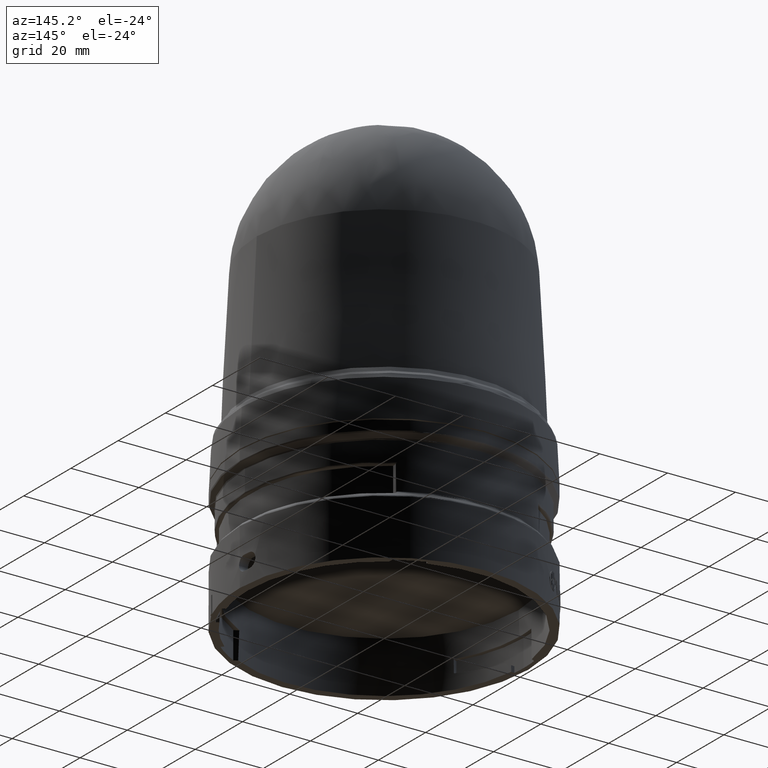
[diagram: clean part render]
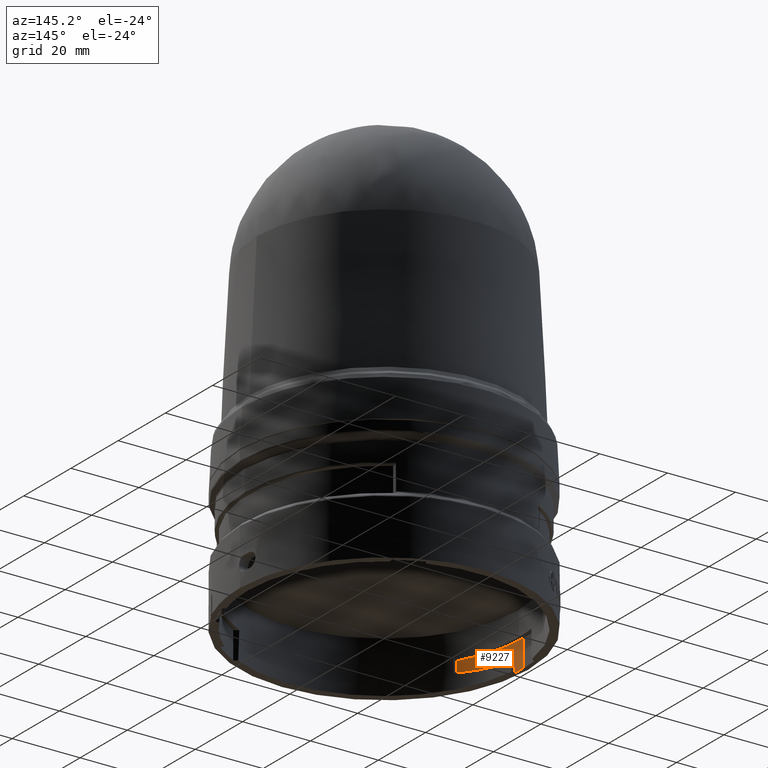
[diagram: same view with one face highlighted and labeled with its STEP entity id]
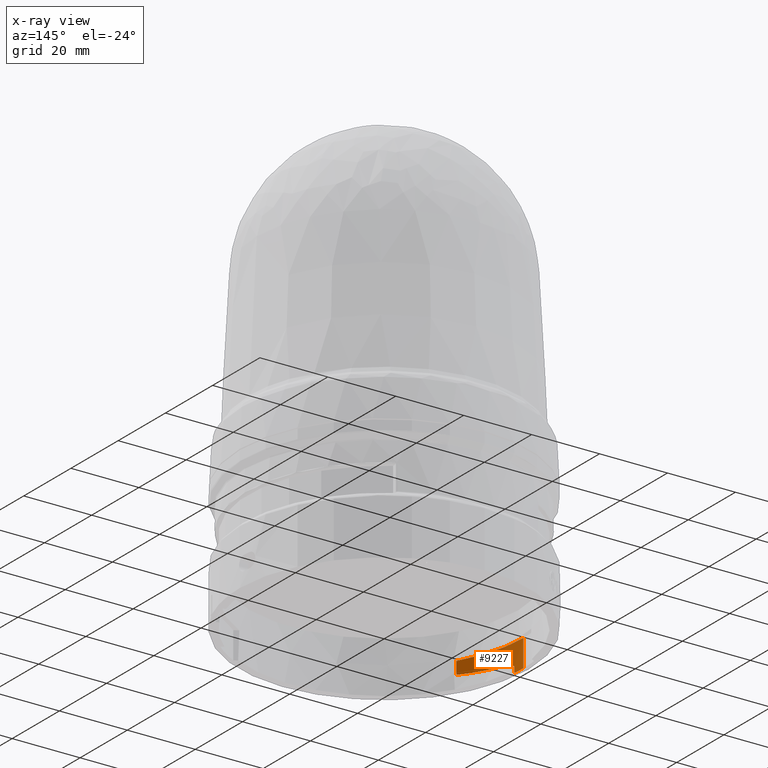
[diagram: x-ray of the same camera — body ghosted, the highlighted face saturated]
A machine part, auxiliary view. The second image highlights one B-rep face of the part: STEP entity #9227.
The next image is the same camera in x-ray: the body ghosted, the highlighted face saturated — about 0% of this face is hidden behind the body in this view.
In plain terms, the highlighted cylindrical surface (partial cylindrical patch) has radius 41 mm, axis along (0, 0, -1).
Its self-contained STEP definition (entity closure, byte-faithful):
#202 = ORIENTED_EDGE ( 'NONE', *, *, #3271, .F. ) ;
#547 = CARTESIAN_POINT ( 'NONE',  ( -1.570605161167718533, -0.4273900073737654237, 0.1327989843107011403 ) ) ;
#566 = VERTEX_POINT ( 'NONE', #1393 ) ;
#697 = CARTESIAN_POINT ( 'NONE',  ( -1.397915021856770634, -0.8070866141732285781, 0.1692913385826773642 ) ) ;
#1165 = CARTESIAN_POINT ( 'NONE',  ( -1.397915021856770634, -0.8070866141732291332, 0.3149606299212602822 ) ) ;
#1393 = CARTESIAN_POINT ( 'NONE',  ( -1.608030811880376998, -0.1406844666399193755, 0.06916624872319923623 ) ) ;
#1469 = CIRCLE ( 'NONE', #13457, 1.614173228346456712 ) ;
#1570 = CARTESIAN_POINT ( 'NONE',  ( 0.0000000000000000000, 0.0000000000000000000, 2.731847993664263218E-16 ) ) ;
#1690 = ORIENTED_EDGE ( 'NONE', *, *, #4245, .F. ) ;
#1779 = CARTESIAN_POINT ( 'NONE',  ( -1.605717400007532047, -0.1671268853443660940, 0.08449731732468093726 ) ) ;
#2485 = LINE ( 'NONE', #1165, #12586 ) ;
#2946 = ORIENTED_EDGE ( 'NONE', *, *, #4628, .F. ) ;
#3271 = EDGE_CURVE ( 'NONE', #566, #9690, #5677, .T. ) ;
#3800 = CARTESIAN_POINT ( 'NONE',  ( -1.614173228346456712, 0.0000000000000000000, 2.731847993664263218E-16 ) ) ;
#4047 = LINE ( 'NONE', #8834, #8086 ) ;
#4245 = EDGE_CURVE ( 'NONE', #9690, #12371, #9470, .T. ) ;
#4628 = EDGE_CURVE ( 'NONE', #9752, #566, #4047, .T. ) ;
#5181 = CYLINDRICAL_SURFACE ( 'NONE', #12118, 1.614173228346456712 ) ;
#5612 = ORIENTED_EDGE ( 'NONE', *, *, #6969, .F. ) ;
#5677 =( BOUNDED_CURVE ( )  B_SPLINE_CURVE ( 3, ( #10009, #1779, #6561, #14766 ),
 .UNSPECIFIED., .F., .F. ) 
 B_SPLINE_CURVE_WITH_KNOTS ( ( 4, 4 ),
 ( 1.521521338138088542, 1.570848262100884352 ),
 .UNSPECIFIED. ) 
 CURVE ( )  GEOMETRIC_REPRESENTATION_ITEM ( )  RATIONAL_B_SPLINE_CURVE ( ( 1.000000000000000000, 0.9997972481589414429, 0.9997972481589414429, 1.000000000000000000 ) ) 
 REPRESENTATION_ITEM ( '' )  );
#6201 = ORIENTED_EDGE ( 'NONE', *, *, #15354, .F. ) ;
#6393 = DIRECTION ( 'NONE',  ( 0.0000000000000000000, 0.0000000000000000000, -1.000000000000000000 ) ) ;
#6425 = DIRECTION ( 'NONE',  ( 0.0000000000000000000, 0.0000000000000000000, -1.000000000000000000 ) ) ;
#6561 = CARTESIAN_POINT ( 'NONE',  ( -1.602752596233869564, -0.1935042112137255466, 0.09984236824839572144 ) ) ;
#6724 = AXIS2_PLACEMENT_3D ( 'NONE', #7529, #6425, #12292 ) ;
#6969 = EDGE_CURVE ( 'NONE', #12371, #9337, #2485, .T. ) ;
#6979 = CARTESIAN_POINT ( 'NONE',  ( -1.599138203917662482, -0.2198004000938510449, 0.1151920677823656258 ) ) ;
#7273 = DIRECTION ( 'NONE',  ( -0.0000000000000000000, -0.0000000000000000000, 1.000000000000000000 ) ) ;
#7529 = CARTESIAN_POINT ( 'NONE',  ( 0.0000000000000000000, 0.0000000000000000000, 0.3149606299212602822 ) ) ;
#7839 = CARTESIAN_POINT ( 'NONE',  ( -1.397915021856770634, -0.8070866141732293553, 0.3149606299212602822 ) ) ;
#7934 = ORIENTED_EDGE ( 'NONE', *, *, #12610, .F. ) ;
#8086 = VECTOR ( 'NONE', #12424, 39.37007874015748143 ) ;
#8764 = VERTEX_POINT ( 'NONE', #13165 ) ;
#8834 = CARTESIAN_POINT ( 'NONE',  ( -1.608030811880376776, -0.1406844666399194865, 0.3149606299212602822 ) ) ;
#8867 = FACE_OUTER_BOUND ( 'NONE', #13970, .T. ) ;
#8890 = ORIENTED_EDGE ( 'NONE', *, *, #15466, .F. ) ;
#9227 = ADVANCED_FACE ( 'NONE', ( #8867 ), #5181, .F. ) ;
#9337 = VERTEX_POINT ( 'NONE', #7839 ) ;
#9470 =( BOUNDED_CURVE ( )  B_SPLINE_CURVE ( 3, ( #11271, #547, #14928, #697 ),
 .UNSPECIFIED., .F., .F. ) 
 B_SPLINE_CURVE_WITH_KNOTS ( ( 4, 4 ),
 ( 1.288510692878770181, 1.675516081914557809 ),
 .UNSPECIFIED. ) 
 CURVE ( )  GEOMETRIC_REPRESENTATION_ITEM ( )  RATIONAL_B_SPLINE_CURVE ( ( 1.000000000000000000, 0.9875577982796063248, 0.9875577982796063248, 1.000000000000000000 ) ) 
 REPRESENTATION_ITEM ( '' )  );
#9690 = VERTEX_POINT ( 'NONE', #6979 ) ;
#9752 = VERTEX_POINT ( 'NONE', #10791 ) ;
#9794 = DIRECTION ( 'NONE',  ( -0.0000000000000000000, -0.0000000000000000000, 1.000000000000000000 ) ) ;
#9888 = DIRECTION ( 'NONE',  ( -1.000000000000000000, 0.0000000000000000000, 0.0000000000000000000 ) ) ;
#10009 = CARTESIAN_POINT ( 'NONE',  ( -1.608030811880376998, -0.1406844666399193755, 0.06916624872319923623 ) ) ;
#10791 = CARTESIAN_POINT ( 'NONE',  ( -1.608030811880376776, -0.1406844666399193200, 2.731847993664263218E-16 ) ) ;
#10895 = VERTEX_POINT ( 'NONE', #3800 ) ;
#11138 = DIRECTION ( 'NONE',  ( 0.0000000000000000000, 0.0000000000000000000, -1.000000000000000000 ) ) ;
#11271 = CARTESIAN_POINT ( 'NONE',  ( -1.599138203917662482, -0.2198004000938510449, 0.1151920677823656258 ) ) ;
#12118 = AXIS2_PLACEMENT_3D ( 'NONE', #12308, #11138, #9888 ) ;
#12292 = DIRECTION ( 'NONE',  ( -1.000000000000000000, 0.0000000000000000000, 0.0000000000000000000 ) ) ;
#12308 = CARTESIAN_POINT ( 'NONE',  ( 0.0000000000000000000, 0.0000000000000000000, 0.3149606299212602822 ) ) ;
#12332 = LINE ( 'NONE', #14519, #12461 ) ;
#12371 = VERTEX_POINT ( 'NONE', #13393 ) ;
#12424 = DIRECTION ( 'NONE',  ( -0.0000000000000000000, -0.0000000000000000000, 1.000000000000000000 ) ) ;
#12461 = VECTOR ( 'NONE', #6393, 39.37007874015748143 ) ;
#12586 = VECTOR ( 'NONE', #7273, 39.37007874015748143 ) ;
#12610 = EDGE_CURVE ( 'NONE', #8764, #10895, #12332, .T. ) ;
#13165 = CARTESIAN_POINT ( 'NONE',  ( -1.614173228346456712, 0.0000000000000000000, 0.3149606299212602822 ) ) ;
#13393 = CARTESIAN_POINT ( 'NONE',  ( -1.397915021856770634, -0.8070866141732285781, 0.1692913385826773642 ) ) ;
#13457 = AXIS2_PLACEMENT_3D ( 'NONE', #1570, #9794, #13461 ) ;
#13461 = DIRECTION ( 'NONE',  ( -1.000000000000000000, 0.0000000000000000000, 0.0000000000000000000 ) ) ;
#13970 = EDGE_LOOP ( 'NONE', ( #7934, #8890, #5612, #1690, #202, #2946, #6201 ) ) ;
#14447 = CIRCLE ( 'NONE', #6724, 1.614173228346456712 ) ;
#14519 = CARTESIAN_POINT ( 'NONE',  ( -1.614173228346456712, 0.0000000000000000000, 0.3149606299212602822 ) ) ;
#14766 = CARTESIAN_POINT ( 'NONE',  ( -1.599138203917662482, -0.2198004000938510449, 0.1151920677823656258 ) ) ;
#14928 = CARTESIAN_POINT ( 'NONE',  ( -1.502685699504668904, -0.6256184773436481716, 0.1510592727699543170 ) ) ;
#15354 = EDGE_CURVE ( 'NONE', #10895, #9752, #1469, .T. ) ;
#15466 = EDGE_CURVE ( 'NONE', #9337, #8764, #14447, .T. ) ;